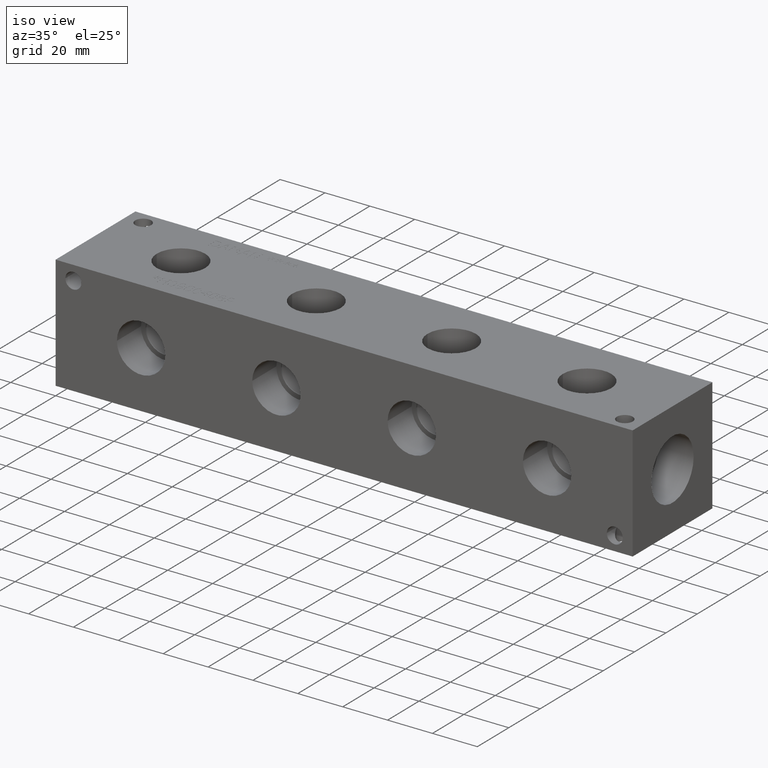
[diagram: clean part render]
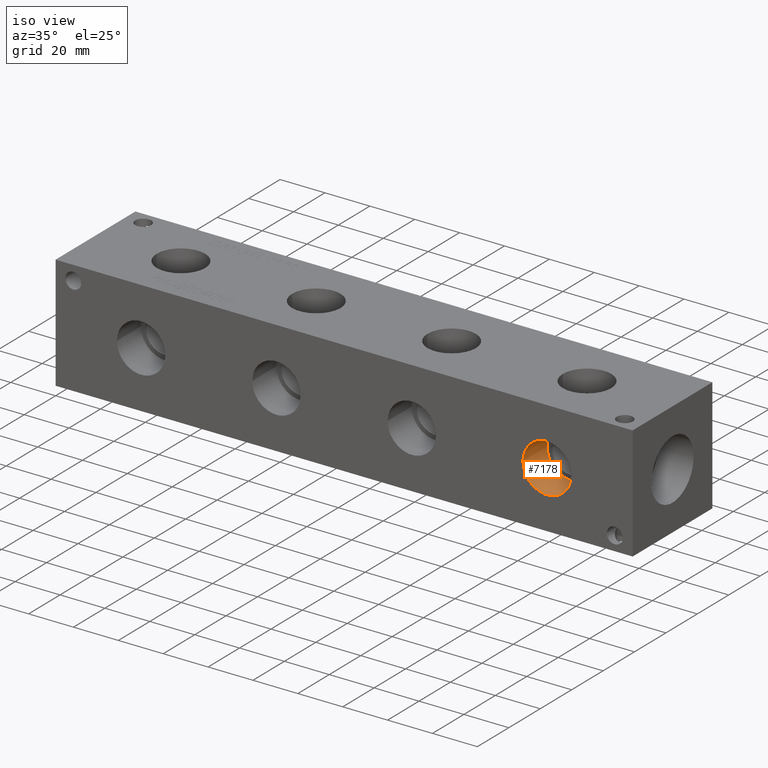
[diagram: same view with one face highlighted and labeled with its STEP entity id]
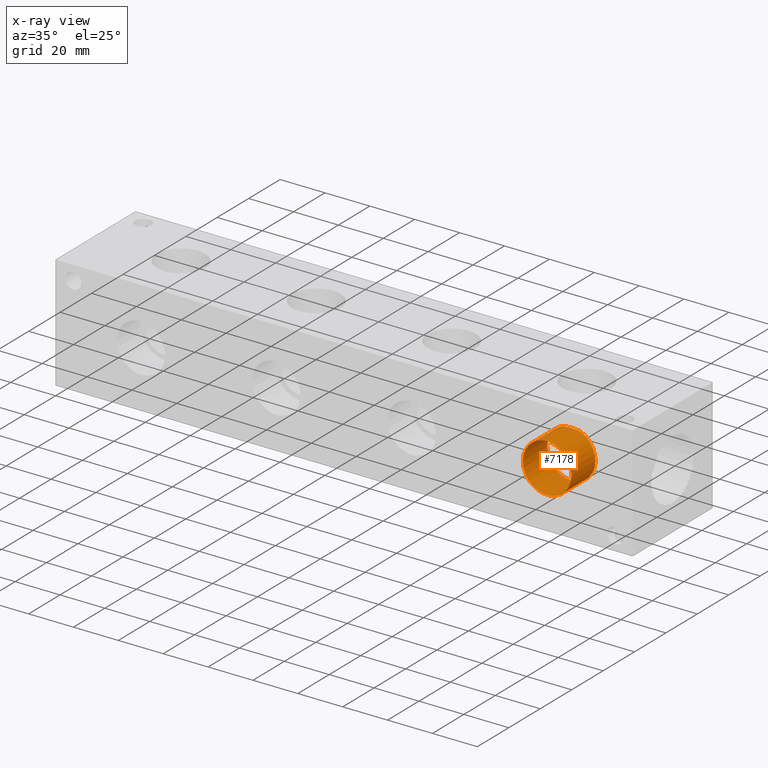
[diagram: x-ray of the same camera — body ghosted, the highlighted face saturated]
A machine part, iso view. The second image highlights one B-rep face of the part: STEP entity #7178.
The next image is the same camera in x-ray: the body ghosted, the highlighted face saturated — about 0% of this face is hidden behind the body in this view.
In plain terms, the highlighted cylindrical surface (bore or boss wall) has radius 10.795 mm, axis along (0, -1, 0).
Its self-contained STEP definition (entity closure, byte-faithful):
#27=ELLIPSE('',#7496,15.2664354058176,10.795);
#42=CYLINDRICAL_SURFACE('',#7492,10.795);
#97=CIRCLE('',#7493,10.795);
#98=CIRCLE('',#7494,10.795);
#99=CIRCLE('',#7495,10.795);
#100=CIRCLE('',#7497,10.795);
#755=FACE_OUTER_BOUND('',#1161,.T.);
#1161=EDGE_LOOP('',(#6228,#6229,#6230,#6231,#6232,#6233,#6234));
#1877=LINE('',#12160,#2570);
#2570=VECTOR('',#8771,10.795);
#3417=VERTEX_POINT('',#12155);
#3418=VERTEX_POINT('',#12156);
#3419=VERTEX_POINT('',#12159);
#3420=VERTEX_POINT('',#12161);
#3421=VERTEX_POINT('',#12163);
#4373=EDGE_CURVE('',#3417,#3418,#97,.T.);
#4374=EDGE_CURVE('',#3418,#3417,#98,.T.);
#4375=EDGE_CURVE('',#3418,#3419,#1877,.T.);
#4376=EDGE_CURVE('',#3420,#3419,#99,.T.);
#4377=EDGE_CURVE('',#3421,#3420,#27,.T.);
#4378=EDGE_CURVE('',#3419,#3421,#100,.T.);
#6228=ORIENTED_EDGE('',*,*,#4373,.F.);
#6229=ORIENTED_EDGE('',*,*,#4374,.F.);
#6230=ORIENTED_EDGE('',*,*,#4375,.T.);
#6231=ORIENTED_EDGE('',*,*,#4376,.F.);
#6232=ORIENTED_EDGE('',*,*,#4377,.F.);
#6233=ORIENTED_EDGE('',*,*,#4378,.F.);
#6234=ORIENTED_EDGE('',*,*,#4375,.F.);
#7178=ADVANCED_FACE('',(#755),#42,.F.);
#7492=AXIS2_PLACEMENT_3D('',#12154,#8765,#8766);
#7493=AXIS2_PLACEMENT_3D('',#12157,#8767,#8768);
#7494=AXIS2_PLACEMENT_3D('',#12158,#8769,#8770);
#7495=AXIS2_PLACEMENT_3D('',#12162,#8772,#8773);
#7496=AXIS2_PLACEMENT_3D('',#12164,#8774,#8775);
#7497=AXIS2_PLACEMENT_3D('',#12165,#8776,#8777);
#8765=DIRECTION('center_axis',(0.,-1.,0.));
#8766=DIRECTION('ref_axis',(1.,0.,0.));
#8767=DIRECTION('center_axis',(0.,1.,0.));
#8768=DIRECTION('ref_axis',(1.,0.,0.));
#8769=DIRECTION('center_axis',(0.,1.,0.));
#8770=DIRECTION('ref_axis',(1.,0.,0.));
#8771=DIRECTION('',(0.,1.,0.));
#8772=DIRECTION('center_axis',(0.,-1.,0.));
#8773=DIRECTION('ref_axis',(1.,0.,0.));
#8774=DIRECTION('center_axis',(0.,-0.707106781186548,-0.707106781186547));
#8775=DIRECTION('ref_axis',(0.,-0.707106781186547,0.707106781186548));
#8776=DIRECTION('center_axis',(0.,-1.,0.));
#8777=DIRECTION('ref_axis',(1.,0.,0.));
#12154=CARTESIAN_POINT('Origin',(219.075,7.6835,25.4));
#12155=CARTESIAN_POINT('',(229.87,0.,25.4));
#12156=CARTESIAN_POINT('',(208.28,0.,25.4));
#12157=CARTESIAN_POINT('Origin',(219.075,0.,25.4));
#12158=CARTESIAN_POINT('Origin',(219.075,0.,25.4));
#12159=CARTESIAN_POINT('',(208.28,15.367,25.4));
#12160=CARTESIAN_POINT('',(208.28,7.6835,25.4));
#12161=CARTESIAN_POINT('',(215.091165666095,15.367,35.433));
#12162=CARTESIAN_POINT('Origin',(219.075,15.367,25.4));
#12163=CARTESIAN_POINT('',(223.058834333905,15.367,35.433));
#12164=CARTESIAN_POINT('Origin',(219.075,25.4,25.4));
#12165=CARTESIAN_POINT('Origin',(219.075,15.367,25.4));